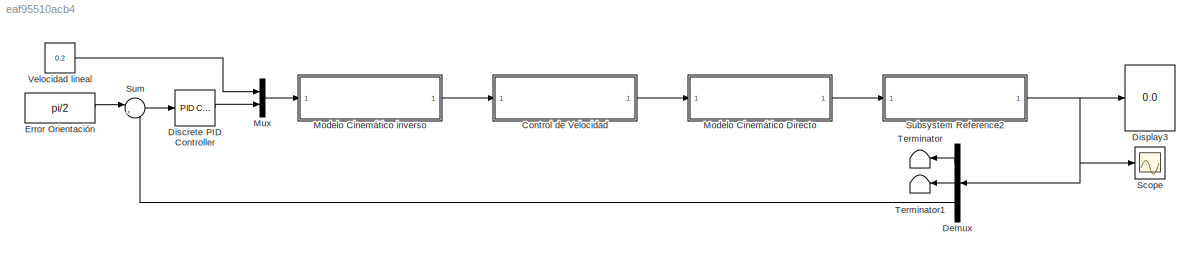
MODEL slx_eaf95510acb4
KIND model
CONFIG AbsTol = auto
CONFIG EnableMultiTasking = on
CONFIG FixedStep = auto
CONFIG MaxStep = auto
CONFIG MinStep = auto
CONFIG RelTol = 1e-3
CONFIG SampleTimeConstraint = Unconstrained
CONFIG SolverName = FixedStepAuto
CONFIG StartTime = 0.0
CONFIG StopTime = 66
WORKSPACE source: mxarray member
WORKSPACE d: Simulink.Parameter (value not decoded)
BLOCK [SubSystem] Control de Velocidad
  ReferencedSubsystem = PieroCV
BLOCK [Demux] Demux
  Outputs = 3
BLOCK [Reference] Discrete PID Controller  REF=slpidlib/PID Controller
  LibrarySourceBlock = simulink/Discrete/Discrete PID Controller
  SourceBlock = slpidlib/PID Controller
  SourceType = PID 1dof
BLOCK [Display] Display3
  Decimation = 1
BLOCK [Constant] Error Orientación
  Value = pi/2
BLOCK [SubSystem] Modelo Cinemático Directo
  ReferencedSubsystem = MCD
BLOCK [SubSystem] Modelo Cinemático inverso
  ReferencedSubsystem = MCI
BLOCK [Mux] Mux
  DisplayOption = bar
  Inputs = 2
BLOCK [Scope] Scope
  Floating = off
  NumInputPorts = 1
  ScopeSpecificationString = Simulink.scopes.TimeScopeBlockCfg('CurrentConfiguration', extmgr.ConfigurationSet(extmgr.Configuration('Core','General UI',true),extmgr.Configuration('Core','Source UI',true),extmgr.Configuration('Sources','WiredSimulink',true),extmgr.Configuration('Visuals','Time Domain',true,'SerializedDisplays',{struct('MinYLimReal','-0.20346','MaxYLimReal','1.81959','YLabelReal','','MinYLimMag','0.00000','MaxY...<+1445ch>
BLOCK [SubSystem] Subsystem Reference2
  ReferencedSubsystem = Odometria
BLOCK [Sum] Sum
  Inputs = |+-
BLOCK [Terminator] Terminator
BLOCK [Terminator] Terminator1
BLOCK [Constant] Velocidad lineal
  Value = 0.2
LINE Control de Velocidad:1 -> Modelo Cinemático Directo:1
LINE Demux:1 -> Terminator:1
LINE Demux:2 -> Terminator1:1
LINE Demux:3 -> Sum:2
LINE Discrete PID Controller:1 -> Mux:2
LINE Error Orientación:1 -> Sum:1
LINE Modelo Cinemático Directo:1 -> Subsystem Reference2:1
LINE Modelo Cinemático inverso:1 -> Control de Velocidad:1
LINE Mux:1 -> Modelo Cinemático inverso:1
NET Subsystem Reference2:1 -> Demux:1, Display3:1, Scope:1
LINE Sum:1 -> Discrete PID Controller:1
LINE Velocidad lineal:1 -> Mux:1
note: NET lines group one-source signal fan-out (src -> all destinations, sorted); 1:1 wires keep LINE
